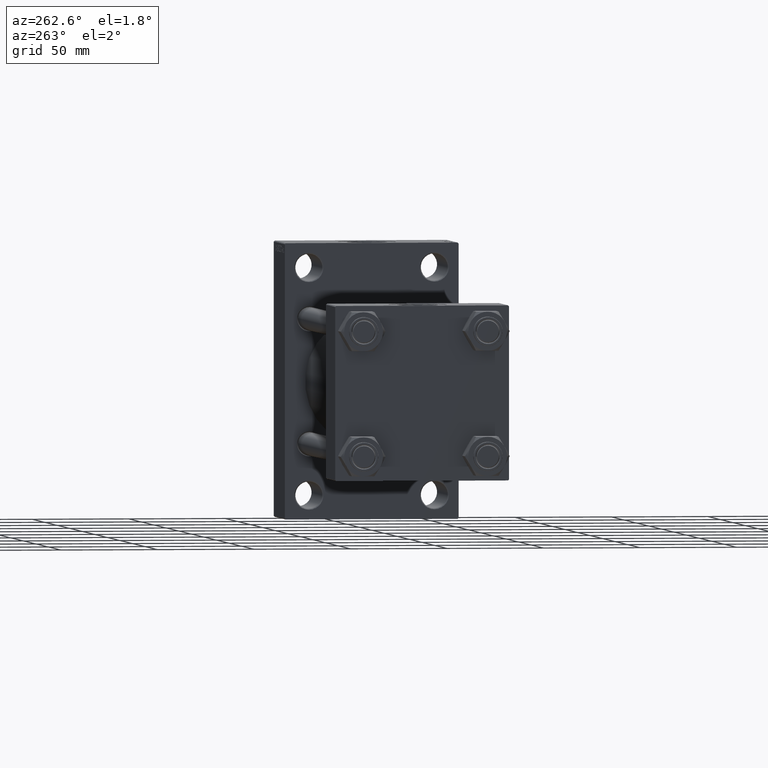
[diagram: clean part render]
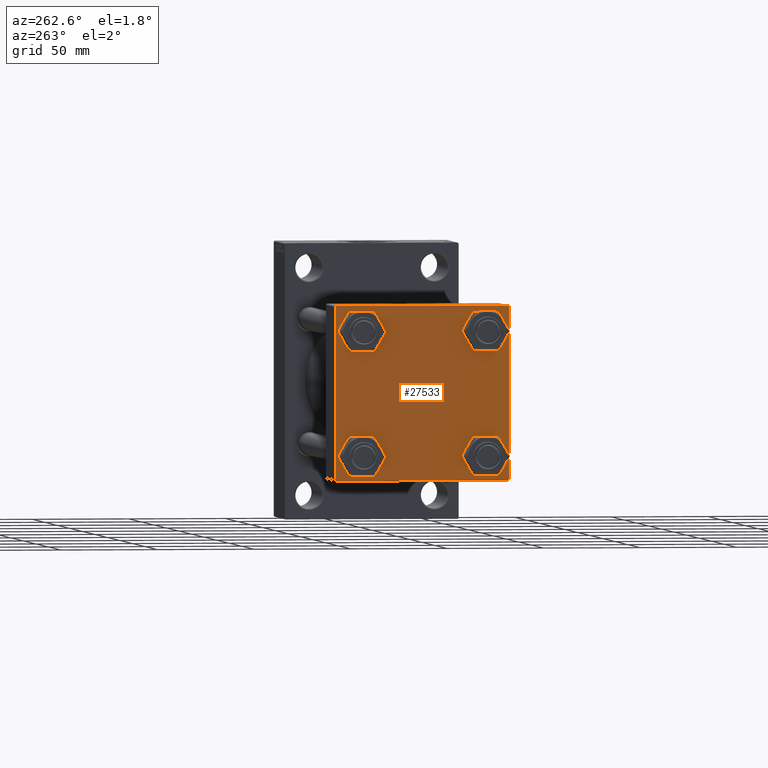
[diagram: same view with one face highlighted and labeled with its STEP entity id]
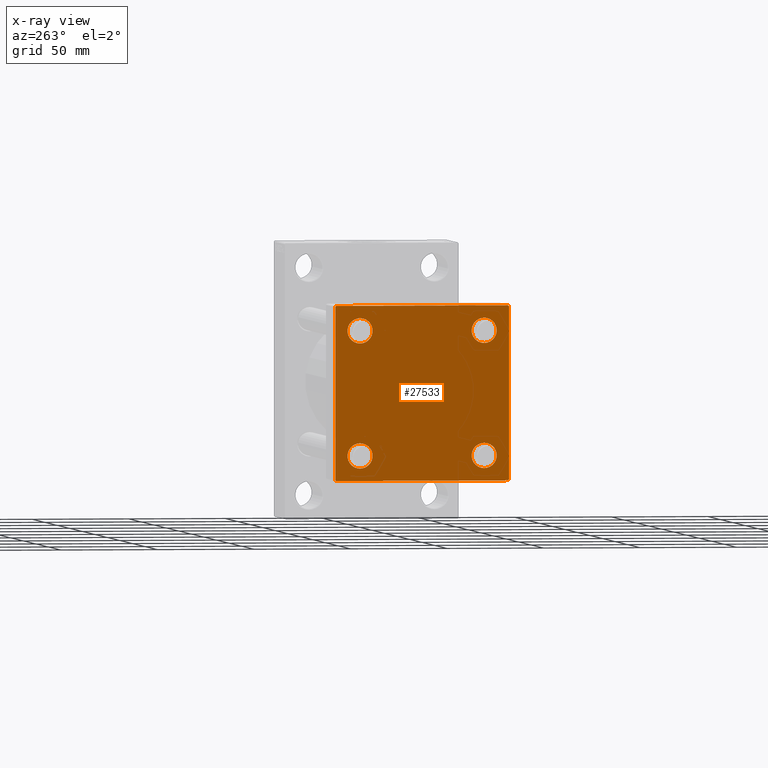
[diagram: x-ray of the same camera — body ghosted, the highlighted face saturated]
A machine part, auxiliary view. The second image highlights one B-rep face of the part: STEP entity #27533.
The next image is the same camera in x-ray: the body ghosted, the highlighted face saturated — about 0% of this face is hidden behind the body in this view.
In plain terms, the highlighted planar face has unit normal (-1, 0, 0).
Its self-contained STEP definition (entity closure, byte-faithful):
#408 = AXIS2_PLACEMENT_3D ( 'NONE', #15912, #12994, #19521 ) ;
#999 = EDGE_CURVE ( 'NONE', #6072, #23638, #41811, .T. ) ;
#1032 = ORIENTED_EDGE ( 'NONE', *, *, #6236, .T. ) ;
#1436 = FACE_BOUND ( 'NONE', #2213, .T. ) ;
#1592 = DIRECTION ( 'NONE',  ( 0.000000000000000000, 0.000000000000000000, 1.000000000000000000 ) ) ;
#2018 = CARTESIAN_POINT ( 'NONE',  ( 0.000000000000000000, -32.14999999999997726, 25.64999999999999147 ) ) ;
#2213 = EDGE_LOOP ( 'NONE', ( #20591, #43475 ) ) ;
#2251 = CARTESIAN_POINT ( 'NONE',  ( 0.000000000000000000, 32.14999999999999147, 38.64999999999999147 ) ) ;
#2258 = CARTESIAN_POINT ( 'NONE',  ( 0.000000000000000000, 44.74999999999998579, -44.74999999999998579 ) ) ;
#2408 = VERTEX_POINT ( 'NONE', #14450 ) ;
#2443 = VECTOR ( 'NONE', #16834, 1000.000000000000114 ) ;
#2490 = EDGE_CURVE ( 'NONE', #38672, #10363, #19976, .T. ) ;
#2779 = CARTESIAN_POINT ( 'NONE',  ( 0.000000000000000000, 32.14999999999999147, -25.65000000000002700 ) ) ;
#3666 = DIRECTION ( 'NONE',  ( -0.000000000000000000, 0.7071067811865425767, 0.7071067811865524577 ) ) ;
#3847 = VERTEX_POINT ( 'NONE', #36433 ) ;
#4088 = EDGE_LOOP ( 'NONE', ( #25446, #26907 ) ) ;
#4839 = CARTESIAN_POINT ( 'NONE',  ( 0.000000000000000000, 0.000000000000000000, 0.000000000000000000 ) ) ;
#4844 = CARTESIAN_POINT ( 'NONE',  ( 0.000000000000000000, -45.00000000000000711, 45.00000000000000000 ) ) ;
#5038 = CIRCLE ( 'NONE', #34451, 6.499999999999977796 ) ;
#5873 = AXIS2_PLACEMENT_3D ( 'NONE', #22487, #19328, #26131 ) ;
#5886 = VERTEX_POINT ( 'NONE', #7906 ) ;
#5920 = LINE ( 'NONE', #2258, #39768 ) ;
#5983 = CARTESIAN_POINT ( 'NONE',  ( 0.000000000000000000, -45.00000000000000711, 44.49999999999997158 ) ) ;
#6004 = VECTOR ( 'NONE', #27062, 1000.000000000000000 ) ;
#6012 = CARTESIAN_POINT ( 'NONE',  ( 0.000000000000000000, -44.49999999999995737, -45.00000000000000000 ) ) ;
#6072 = VERTEX_POINT ( 'NONE', #35736 ) ;
#6236 = EDGE_CURVE ( 'NONE', #10511, #38672, #34428, .T. ) ;
#6549 = ORIENTED_EDGE ( 'NONE', *, *, #9231, .T. ) ;
#6646 = EDGE_LOOP ( 'NONE', ( #22294, #33124 ) ) ;
#7906 = CARTESIAN_POINT ( 'NONE',  ( 0.000000000000000000, -32.14999999999997726, 38.65000000000003411 ) ) ;
#8350 = EDGE_CURVE ( 'NONE', #3847, #42437, #45256, .T. ) ;
#8481 = FACE_BOUND ( 'NONE', #4088, .T. ) ;
#8729 = LINE ( 'NONE', #37324, #36492 ) ;
#8827 = VECTOR ( 'NONE', #3666, 1000.000000000000114 ) ;
#9231 = EDGE_CURVE ( 'NONE', #13871, #2408, #26689, .T. ) ;
#9787 = DIRECTION ( 'NONE',  ( -0.000000000000000000, -0.7071067811865474617, -0.7071067811865474617 ) ) ;
#10363 = VERTEX_POINT ( 'NONE', #21663 ) ;
#10467 = AXIS2_PLACEMENT_3D ( 'NONE', #23654, #38433, #1592 ) ;
#10511 = VERTEX_POINT ( 'NONE', #15370 ) ;
#10580 = ORIENTED_EDGE ( 'NONE', *, *, #37178, .T. ) ;
#11523 = CARTESIAN_POINT ( 'NONE',  ( 0.000000000000000000, -44.74999999999998579, -44.74999999999998579 ) ) ;
#11881 = CARTESIAN_POINT ( 'NONE',  ( 0.000000000000000000, 44.99999999999998579, -44.49999999999995737 ) ) ;
#12363 = DIRECTION ( 'NONE',  ( -0.000000000000000000, 0.000000000000000000, 1.000000000000000000 ) ) ;
#12371 = DIRECTION ( 'NONE',  ( 0.000000000000000000, -1.000000000000000000, -1.541976423090495387E-16 ) ) ;
#12380 = CARTESIAN_POINT ( 'NONE',  ( 0.000000000000000000, 44.99999999999998579, -44.99999999999998579 ) ) ;
#12805 = CARTESIAN_POINT ( 'NONE',  ( 0.000000000000000000, -32.14999999999997726, -38.64999999999999147 ) ) ;
#12994 = DIRECTION ( 'NONE',  ( 1.000000000000000000, -0.000000000000000000, 0.000000000000000000 ) ) ;
#13655 = CARTESIAN_POINT ( 'NONE',  ( 0.000000000000000000, -32.14999999999997726, -32.15000000000001279 ) ) ;
#13871 = VERTEX_POINT ( 'NONE', #2779 ) ;
#14326 = AXIS2_PLACEMENT_3D ( 'NONE', #19284, #22209, #40376 ) ;
#14450 = CARTESIAN_POINT ( 'NONE',  ( 0.000000000000000000, 32.14999999999999147, -38.64999999999998437 ) ) ;
#15060 = VECTOR ( 'NONE', #22540, 1000.000000000000000 ) ;
#15262 = EDGE_CURVE ( 'NONE', #40868, #6072, #43431, .T. ) ;
#15370 = CARTESIAN_POINT ( 'NONE',  ( 0.000000000000000000, 44.49999999999998579, -44.99999999999998579 ) ) ;
#15760 = EDGE_CURVE ( 'NONE', #40868, #17983, #8729, .T. ) ;
#15912 = CARTESIAN_POINT ( 'NONE',  ( 0.000000000000000000, 32.14999999999999147, 32.15000000000000568 ) ) ;
#16183 = DIRECTION ( 'NONE',  ( 0.000000000000000000, 0.000000000000000000, 1.000000000000000000 ) ) ;
#16812 = DIRECTION ( 'NONE',  ( 1.000000000000000000, -0.000000000000000000, 0.000000000000000000 ) ) ;
#16834 = DIRECTION ( 'NONE',  ( 0.000000000000000000, 0.7071067811865474617, -0.7071067811865474617 ) ) ;
#16914 = ORIENTED_EDGE ( 'NONE', *, *, #15760, .F. ) ;
#17455 = AXIS2_PLACEMENT_3D ( 'NONE', #13655, #16812, #28428 ) ;
#17983 = VERTEX_POINT ( 'NONE', #34075 ) ;
#18191 = EDGE_CURVE ( 'NONE', #29330, #31498, #45247, .T. ) ;
#19284 = CARTESIAN_POINT ( 'NONE',  ( 0.000000000000000000, -32.14999999999997726, -32.15000000000001279 ) ) ;
#19328 = DIRECTION ( 'NONE',  ( 1.000000000000000000, -0.000000000000000000, 0.000000000000000000 ) ) ;
#19521 = DIRECTION ( 'NONE',  ( 0.000000000000000000, 0.000000000000000000, 1.000000000000000000 ) ) ;
#19845 = EDGE_LOOP ( 'NONE', ( #6549, #34016 ) ) ;
#19858 = FACE_BOUND ( 'NONE', #6646, .T. ) ;
#19976 = LINE ( 'NONE', #11523, #32396 ) ;
#20591 = ORIENTED_EDGE ( 'NONE', *, *, #46224, .T. ) ;
#21172 = AXIS2_PLACEMENT_3D ( 'NONE', #40587, #29462, #42842 ) ;
#21663 = CARTESIAN_POINT ( 'NONE',  ( 0.000000000000000000, -45.00000000000000000, -44.49999999999995737 ) ) ;
#22209 = DIRECTION ( 'NONE',  ( 1.000000000000000000, -0.000000000000000000, 0.000000000000000000 ) ) ;
#22294 = ORIENTED_EDGE ( 'NONE', *, *, #8350, .T. ) ;
#22487 = CARTESIAN_POINT ( 'NONE',  ( 0.000000000000000000, 32.14999999999999147, 32.15000000000000568 ) ) ;
#22540 = DIRECTION ( 'NONE',  ( 0.000000000000000000, 7.709882115452476934E-17, -1.000000000000000000 ) ) ;
#22698 = EDGE_CURVE ( 'NONE', #24171, #10363, #38029, .T. ) ;
#22942 = CARTESIAN_POINT ( 'NONE',  ( 0.000000000000000000, 44.99999999999998579, 45.00000000000001421 ) ) ;
#23638 = VERTEX_POINT ( 'NONE', #11881 ) ;
#23654 = CARTESIAN_POINT ( 'NONE',  ( 0.000000000000000000, 32.14999999999999147, -32.15000000000000568 ) ) ;
#24035 = AXIS2_PLACEMENT_3D ( 'NONE', #42086, #27330, #16183 ) ;
#24171 = VERTEX_POINT ( 'NONE', #5983 ) ;
#25446 = ORIENTED_EDGE ( 'NONE', *, *, #25942, .T. ) ;
#25942 = EDGE_CURVE ( 'NONE', #31498, #29330, #46855, .T. ) ;
#26093 = DIRECTION ( 'NONE',  ( 0.000000000000000000, 0.000000000000000000, 1.000000000000000000 ) ) ;
#26131 = DIRECTION ( 'NONE',  ( 0.000000000000000000, 0.000000000000000000, 1.000000000000000000 ) ) ;
#26285 = DIRECTION ( 'NONE',  ( 0.000000000000000000, -0.7071067811865474617, 0.7071067811865474617 ) ) ;
#26689 = CIRCLE ( 'NONE', #10467, 6.499999999999977796 ) ;
#26897 = DIRECTION ( 'NONE',  ( -1.000000000000000000, 0.000000000000000000, -0.000000000000000000 ) ) ;
#26907 = ORIENTED_EDGE ( 'NONE', *, *, #18191, .T. ) ;
#27062 = DIRECTION ( 'NONE',  ( 0.000000000000000000, 0.000000000000000000, -1.000000000000000000 ) ) ;
#27330 = DIRECTION ( 'NONE',  ( 1.000000000000000000, -0.000000000000000000, 0.000000000000000000 ) ) ;
#27533 = ADVANCED_FACE ( 'NONE', ( #1436, #19858, #38742, #8481, #41644 ), #45035, .T. ) ;
#27607 = EDGE_CURVE ( 'NONE', #30732, #5886, #36638, .T. ) ;
#28363 = ORIENTED_EDGE ( 'NONE', *, *, #2490, .T. ) ;
#28428 = DIRECTION ( 'NONE',  ( 0.000000000000000000, 0.000000000000000000, 1.000000000000000000 ) ) ;
#28717 = CIRCLE ( 'NONE', #24035, 6.500000000000019540 ) ;
#29330 = VERTEX_POINT ( 'NONE', #29790 ) ;
#29462 = DIRECTION ( 'NONE',  ( 1.000000000000000000, -0.000000000000000000, 0.000000000000000000 ) ) ;
#29790 = CARTESIAN_POINT ( 'NONE',  ( 0.000000000000000000, 32.14999999999999147, 25.65000000000002700 ) ) ;
#30732 = VERTEX_POINT ( 'NONE', #2018 ) ;
#31389 = CARTESIAN_POINT ( 'NONE',  ( 0.000000000000000000, 44.74999999999999289, 44.74999999999999289 ) ) ;
#31498 = VERTEX_POINT ( 'NONE', #2251 ) ;
#32396 = VECTOR ( 'NONE', #26285, 1000.000000000000114 ) ;
#32565 = CARTESIAN_POINT ( 'NONE',  ( 0.000000000000000000, 44.49999999999998579, 45.00000000000001421 ) ) ;
#33124 = ORIENTED_EDGE ( 'NONE', *, *, #38855, .T. ) ;
#33373 = EDGE_CURVE ( 'NONE', #23638, #10511, #5920, .T. ) ;
#33620 = DIRECTION ( 'NONE',  ( 1.000000000000000000, -0.000000000000000000, 0.000000000000000000 ) ) ;
#33844 = ORIENTED_EDGE ( 'NONE', *, *, #999, .T. ) ;
#34016 = ORIENTED_EDGE ( 'NONE', *, *, #39796, .T. ) ;
#34075 = CARTESIAN_POINT ( 'NONE',  ( 0.000000000000000000, -44.49999999999995737, 45.00000000000000000 ) ) ;
#34428 = LINE ( 'NONE', #12380, #46643 ) ;
#34451 = AXIS2_PLACEMENT_3D ( 'NONE', #44947, #33620, #26093 ) ;
#35736 = CARTESIAN_POINT ( 'NONE',  ( 0.000000000000000000, 44.99999999999998579, 44.50000000000001421 ) ) ;
#36108 = ORIENTED_EDGE ( 'NONE', *, *, #22698, .F. ) ;
#36433 = CARTESIAN_POINT ( 'NONE',  ( 0.000000000000000000, -32.14999999999997726, -25.65000000000003411 ) ) ;
#36492 = VECTOR ( 'NONE', #12371, 1000.000000000000000 ) ;
#36638 = CIRCLE ( 'NONE', #21172, 6.500000000000019540 ) ;
#37178 = EDGE_CURVE ( 'NONE', #24171, #17983, #40954, .T. ) ;
#37324 = CARTESIAN_POINT ( 'NONE',  ( 0.000000000000000000, 44.99999999999998579, 45.00000000000001421 ) ) ;
#38029 = LINE ( 'NONE', #4844, #15060 ) ;
#38433 = DIRECTION ( 'NONE',  ( 1.000000000000000000, -0.000000000000000000, 0.000000000000000000 ) ) ;
#38672 = VERTEX_POINT ( 'NONE', #6012 ) ;
#38742 = FACE_BOUND ( 'NONE', #19845, .T. ) ;
#38855 = EDGE_CURVE ( 'NONE', #42437, #3847, #40577, .T. ) ;
#39768 = VECTOR ( 'NONE', #9787, 1000.000000000000114 ) ;
#39796 = EDGE_CURVE ( 'NONE', #2408, #13871, #5038, .T. ) ;
#40376 = DIRECTION ( 'NONE',  ( 0.000000000000000000, 0.000000000000000000, 1.000000000000000000 ) ) ;
#40577 = CIRCLE ( 'NONE', #14326, 6.499999999999977796 ) ;
#40587 = CARTESIAN_POINT ( 'NONE',  ( 0.000000000000000000, -32.14999999999997726, 32.15000000000001279 ) ) ;
#40723 = CARTESIAN_POINT ( 'NONE',  ( -0.000000000000000000, -44.75000000000029843, 44.74999999999967315 ) ) ;
#40868 = VERTEX_POINT ( 'NONE', #32565 ) ;
#40954 = LINE ( 'NONE', #40723, #8827 ) ;
#41396 = EDGE_LOOP ( 'NONE', ( #33844, #46070, #1032, #28363, #36108, #10580, #16914, #44523 ) ) ;
#41644 = FACE_OUTER_BOUND ( 'NONE', #41396, .T. ) ;
#41811 = LINE ( 'NONE', #22942, #6004 ) ;
#42086 = CARTESIAN_POINT ( 'NONE',  ( 0.000000000000000000, -32.14999999999997726, 32.15000000000001279 ) ) ;
#42389 = DIRECTION ( 'NONE',  ( 0.000000000000000000, -1.000000000000000000, -1.541976423090495633E-16 ) ) ;
#42437 = VERTEX_POINT ( 'NONE', #12805 ) ;
#42842 = DIRECTION ( 'NONE',  ( 0.000000000000000000, 0.000000000000000000, 1.000000000000000000 ) ) ;
#43431 = LINE ( 'NONE', #31389, #2443 ) ;
#43475 = ORIENTED_EDGE ( 'NONE', *, *, #27607, .T. ) ;
#43556 = AXIS2_PLACEMENT_3D ( 'NONE', #4839, #26897, #12363 ) ;
#44523 = ORIENTED_EDGE ( 'NONE', *, *, #15262, .T. ) ;
#44947 = CARTESIAN_POINT ( 'NONE',  ( 0.000000000000000000, 32.14999999999999147, -32.15000000000000568 ) ) ;
#45035 = PLANE ( 'NONE',  #43556 ) ;
#45247 = CIRCLE ( 'NONE', #408, 6.499999999999977796 ) ;
#45256 = CIRCLE ( 'NONE', #17455, 6.499999999999977796 ) ;
#46070 = ORIENTED_EDGE ( 'NONE', *, *, #33373, .T. ) ;
#46224 = EDGE_CURVE ( 'NONE', #5886, #30732, #28717, .T. ) ;
#46643 = VECTOR ( 'NONE', #42389, 1000.000000000000000 ) ;
#46855 = CIRCLE ( 'NONE', #5873, 6.499999999999977796 ) ;